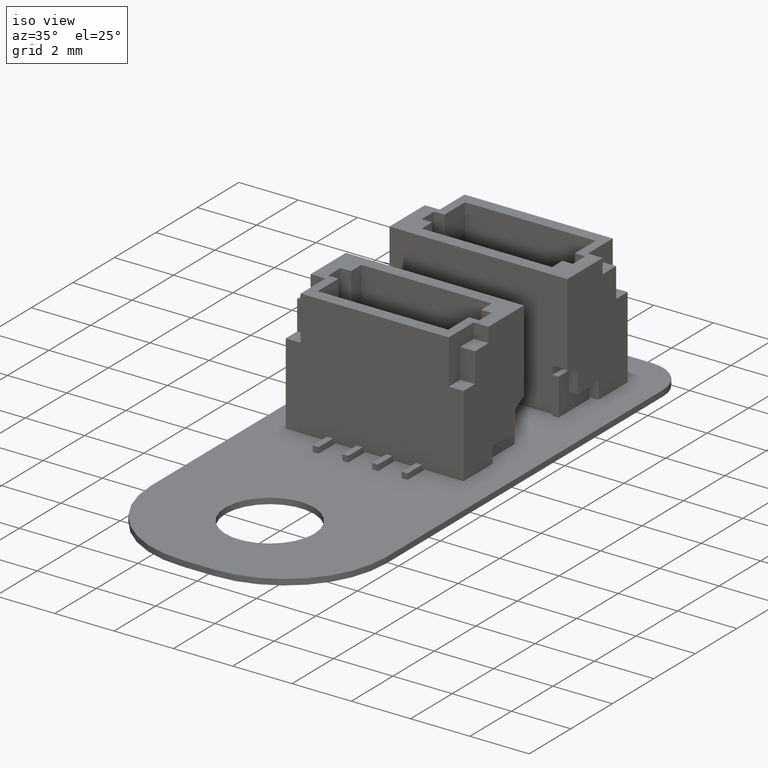
[diagram: clean part render]
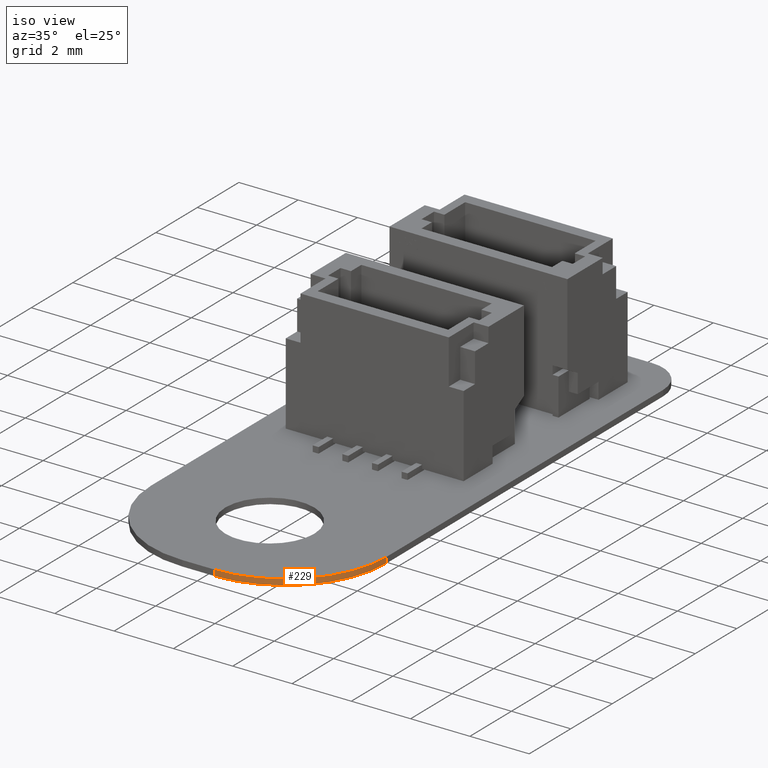
[diagram: same view with one face highlighted and labeled with its STEP entity id]
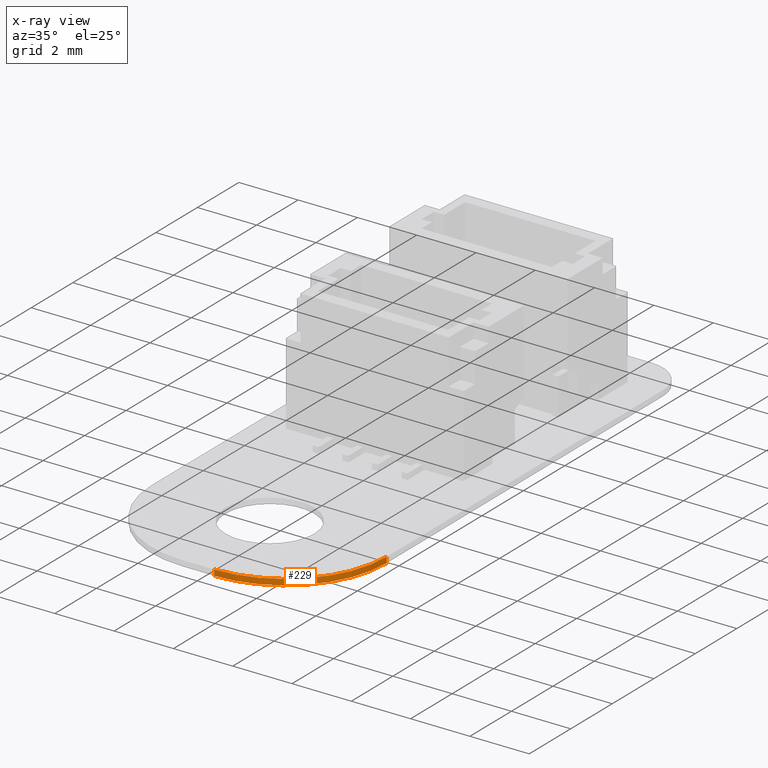
[diagram: x-ray of the same camera — body ghosted, the highlighted face saturated]
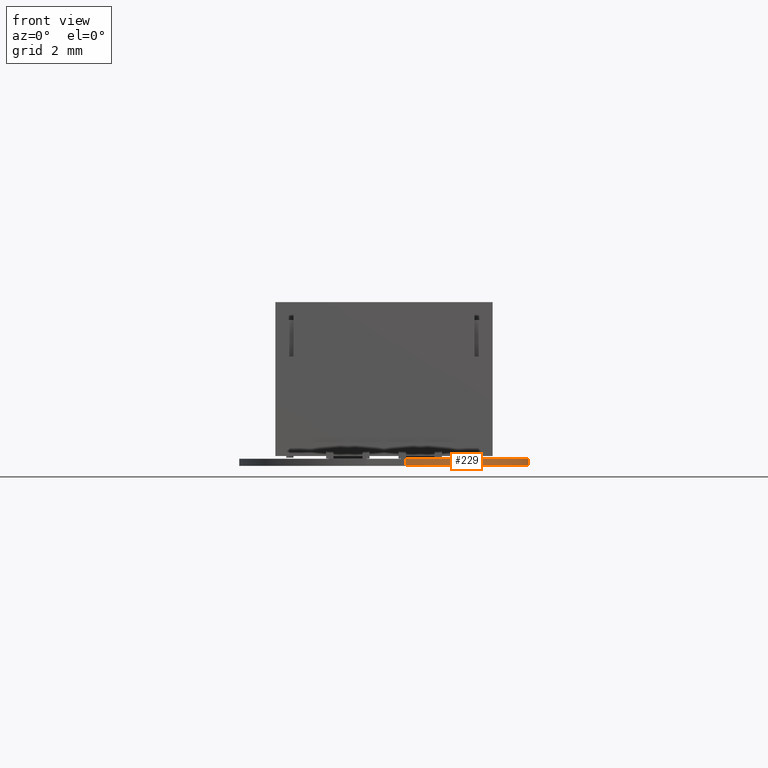
[diagram: same view with one face highlighted and labeled with its STEP entity id]
A machine part, iso view. The second image highlights one B-rep face of the part: STEP entity #229.
The next image is the same camera in x-ray: the body ghosted, the highlighted face saturated — about 0% of this face is hidden behind the body in this view.
A second angle (front view) of the same face is appended — the face is thin or edge-on in the first view.
In plain terms, the highlighted cylindrical surface (partial cylindrical patch) has radius 3.4142 mm, axis along (0, 0, -1).
Its self-contained STEP definition (entity closure, byte-faithful):
#204 = VERTEX_POINT('',#205);
#205 = CARTESIAN_POINT('',(8.,3.414,0.1970024));
#211 = EDGE_CURVE('',#212,#204,#214,.T.);
#212 = VERTEX_POINT('',#213);
#213 = CARTESIAN_POINT('',(8.,3.414,0.));
#214 = LINE('',#215,#216);
#215 = CARTESIAN_POINT('',(8.,3.414,0.));
#216 = VECTOR('',#217,1.);
#217 = DIRECTION('',(0.,0.,1.));
#229 = ADVANCED_FACE('',(#230),#257,.T.);
#230 = FACE_BOUND('',#231,.T.);
#231 = EDGE_LOOP('',(#232,#233,#242,#250));
#232 = ORIENTED_EDGE('',*,*,#211,.T.);
#233 = ORIENTED_EDGE('',*,*,#234,.T.);
#234 = EDGE_CURVE('',#204,#235,#237,.T.);
#235 = VERTEX_POINT('',#236);
#236 = CARTESIAN_POINT('',(4.586,-6.661338147751E-16,0.1970024));
#237 = CIRCLE('',#238,3.414213585181);
#238 = AXIS2_PLACEMENT_3D('',#239,#240,#241);
#239 = CARTESIAN_POINT('',(4.585786421499,3.414213578501,0.1970024));
#240 = DIRECTION('',(0.,0.,-1.));
#241 = DIRECTION('',(0.999999998043,-6.255569412377E-05,0.));
#242 = ORIENTED_EDGE('',*,*,#243,.F.);
#243 = EDGE_CURVE('',#244,#235,#246,.T.);
#244 = VERTEX_POINT('',#245);
#245 = CARTESIAN_POINT('',(4.586,-6.661338147751E-16,0.));
#246 = LINE('',#247,#248);
#247 = CARTESIAN_POINT('',(4.586,-6.661338147751E-16,0.));
#248 = VECTOR('',#249,1.);
#249 = DIRECTION('',(0.,0.,1.));
#250 = ORIENTED_EDGE('',*,*,#251,.F.);
#251 = EDGE_CURVE('',#212,#244,#252,.T.);
#252 = CIRCLE('',#253,3.414213585181);
#253 = AXIS2_PLACEMENT_3D('',#254,#255,#256);
#254 = CARTESIAN_POINT('',(4.585786421499,3.414213578501,0.));
#255 = DIRECTION('',(0.,0.,-1.));
#256 = DIRECTION('',(0.999999998043,-6.255569412377E-05,0.));
#257 = CYLINDRICAL_SURFACE('',#258,3.414213585181);
#258 = AXIS2_PLACEMENT_3D('',#259,#260,#261);
#259 = CARTESIAN_POINT('',(4.585786421499,3.414213578501,0.));
#260 = DIRECTION('',(0.,0.,-1.));
#261 = DIRECTION('',(0.999999998043,-6.255569412377E-05,0.));